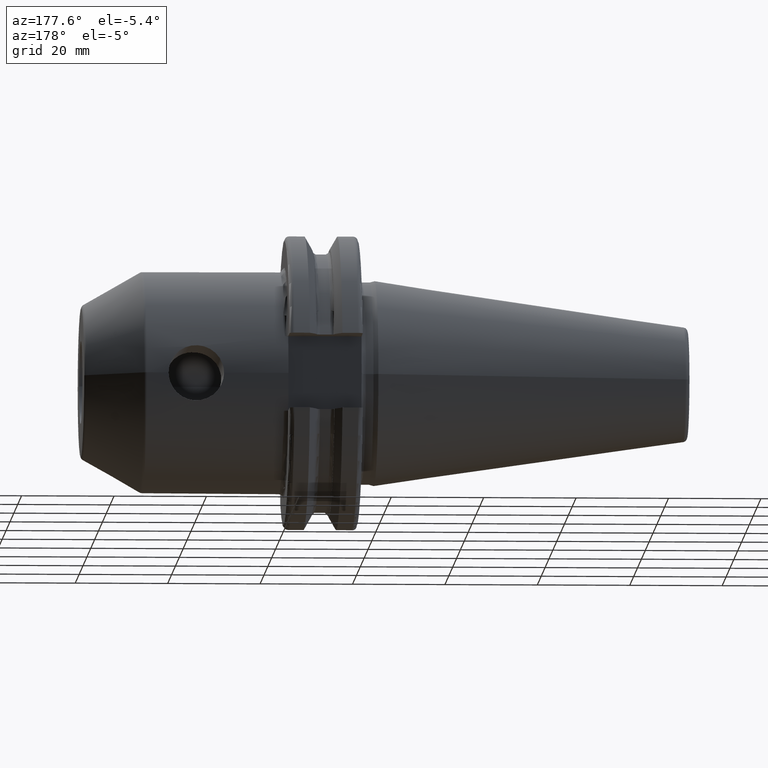
[diagram: clean part render]
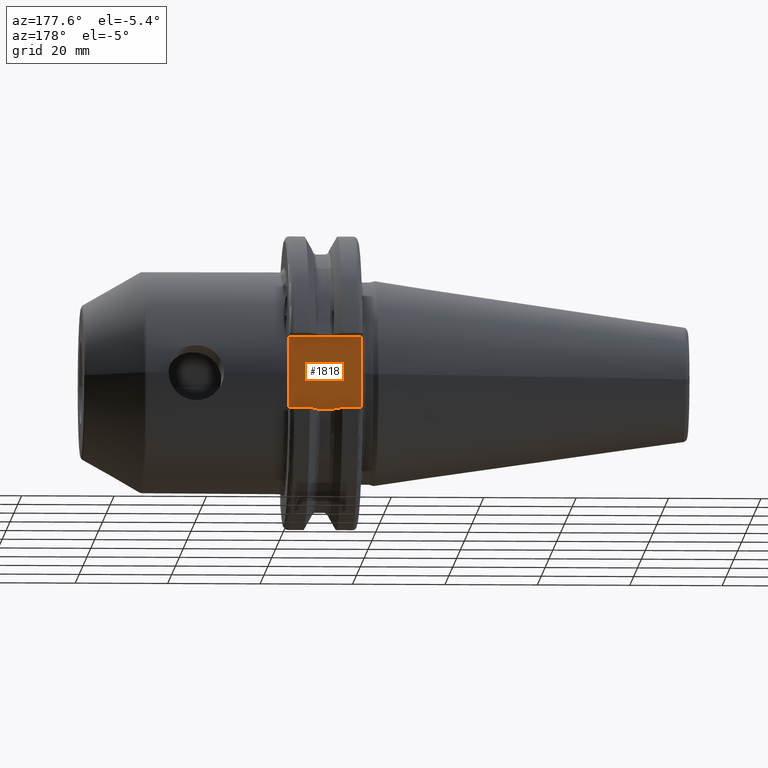
[diagram: same view with one face highlighted and labeled with its STEP entity id]
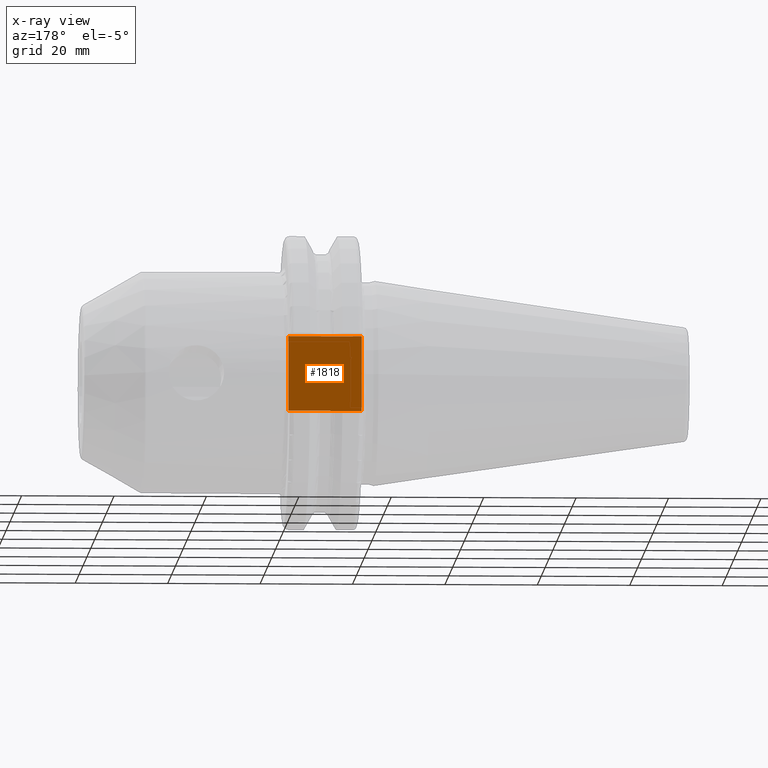
[diagram: x-ray of the same camera — body ghosted, the highlighted face saturated]
A machine part, auxiliary view. The second image highlights one B-rep face of the part: STEP entity #1818.
The next image is the same camera in x-ray: the body ghosted, the highlighted face saturated — about 0% of this face is hidden behind the body in this view.
In plain terms, the highlighted planar face has unit normal (0, -1, 0).
Its self-contained STEP definition (entity closure, byte-faithful):
#96=CARTESIAN_POINT('',(3.145714015969E0,2.255E1,0.E0));
#97=CARTESIAN_POINT('',(3.145714015969E0,2.255E1,-1.830251188857E-1));
#98=CARTESIAN_POINT('',(3.147263299438E0,2.255E1,-5.490774984715E-1));
#99=CARTESIAN_POINT('',(3.153915624300E0,2.255E1,-1.098219783342E0));
#100=CARTESIAN_POINT('',(3.163955531798E0,2.255E1,-1.647254187265E0));
#101=CARTESIAN_POINT('',(3.175890292850E0,2.255E1,-2.196155647006E0));
#102=CARTESIAN_POINT('',(3.187756155044E0,2.255E1,-2.744876756971E0));
#103=CARTESIAN_POINT('',(3.197183898560E0,2.255E1,-3.293518646440E0));
#104=CARTESIAN_POINT('',(3.2E0,2.255E1,-3.659354563864E0));
#105=CARTESIAN_POINT('',(3.2E0,2.255E1,-3.842281223440E0));
#122=DIRECTION('',(0.E0,0.E0,-1.E0));
#123=VECTOR('',#122,1.62E1);
#124=CARTESIAN_POINT('',(1.905E1,2.255E1,8.1E0));
#125=LINE('',#124,#123);
#126=DIRECTION('',(-1.E0,0.E0,0.E0));
#127=VECTOR('',#126,1.585E1);
#128=CARTESIAN_POINT('',(1.905E1,2.255E1,8.1E0));
#129=LINE('',#128,#127);
#238=DIRECTION('',(-1.E0,0.E0,0.E0));
#239=VECTOR('',#238,1.585E1);
#240=CARTESIAN_POINT('',(1.905E1,2.255E1,-8.1E0));
#241=LINE('',#240,#239);
#572=DIRECTION('',(0.E0,0.E0,-1.E0));
#573=VECTOR('',#572,4.257718776560E0);
#574=CARTESIAN_POINT('',(3.2E0,2.255E1,-3.842281223440E0));
#575=LINE('',#574,#573);
#576=DIRECTION('',(0.E0,0.E0,-1.E0));
#577=VECTOR('',#576,4.257718776560E0);
#578=CARTESIAN_POINT('',(3.2E0,2.255E1,8.1E0));
#579=LINE('',#578,#577);
#994=CARTESIAN_POINT('',(3.2E0,2.255E1,3.842281223440E0));
#995=CARTESIAN_POINT('',(3.2E0,2.255E1,3.659346360345E0));
#996=CARTESIAN_POINT('',(3.197183660273E0,2.255E1,3.293495674472E0));
#997=CARTESIAN_POINT('',(3.187755287998E0,2.255E1,2.744832710969E0));
#998=CARTESIAN_POINT('',(3.175889115457E0,2.255E1,2.196103113875E0));
#999=CARTESIAN_POINT('',(3.163954665645E0,2.255E1,1.647211248391E0));
#1000=CARTESIAN_POINT('',(3.153915287595E0,2.255E1,1.098195325368E0));
#1001=CARTESIAN_POINT('',(3.147263292433E0,2.255E1,5.490722257557E-1));
#1002=CARTESIAN_POINT('',(3.145714015969E0,2.255E1,1.830242653455E-1));
#1003=CARTESIAN_POINT('',(3.145714015969E0,2.255E1,0.E0));
#1532=CARTESIAN_POINT('',(3.2E0,2.255E1,8.1E0));
#1534=VERTEX_POINT('',#1532);
#1535=CARTESIAN_POINT('',(3.2E0,2.255E1,3.842281223440E0));
#1536=VERTEX_POINT('',#1535);
#1537=CARTESIAN_POINT('',(3.2E0,2.255E1,-3.842281223440E0));
#1538=CARTESIAN_POINT('',(3.2E0,2.255E1,-8.1E0));
#1539=VERTEX_POINT('',#1537);
#1540=VERTEX_POINT('',#1538);
#1559=VERTEX_POINT('',#1003);
#1641=CARTESIAN_POINT('',(1.905E1,2.255E1,8.1E0));
#1642=CARTESIAN_POINT('',(1.905E1,2.255E1,-8.1E0));
#1643=VERTEX_POINT('',#1641);
#1644=VERTEX_POINT('',#1642);
#1798=CARTESIAN_POINT('',(1.905E1,2.255E1,8.1E0));
#1799=DIRECTION('',(0.E0,-1.E0,0.E0));
#1800=DIRECTION('',(0.E0,0.E0,-1.E0));
#1801=AXIS2_PLACEMENT_3D('',#1798,#1799,#1800);
#1802=PLANE('',#1801);
#1804=ORIENTED_EDGE('',*,*,#1803,.F.);
#1806=ORIENTED_EDGE('',*,*,#1805,.T.);
#1808=ORIENTED_EDGE('',*,*,#1807,.T.);
#1810=ORIENTED_EDGE('',*,*,#1809,.T.);
#1811=ORIENTED_EDGE('',*,*,#1786,.T.);
#1813=ORIENTED_EDGE('',*,*,#1812,.T.);
#1815=ORIENTED_EDGE('',*,*,#1814,.F.);
#1816=EDGE_LOOP('',(#1804,#1806,#1808,#1810,#1811,#1813,#1815));
#1817=FACE_OUTER_BOUND('',#1816,.F.);
#1818=ADVANCED_FACE('',(#1817),#1802,.F.);
#106=B_SPLINE_CURVE_WITH_KNOTS('',3,(#96,#97,#98,#99,#100,#101,#102,#103,#104,
#105),.UNSPECIFIED.,.F.,.F.,(4,1,1,1,1,1,1,4),(0.E0,1.428571428571E-1,
2.857142857143E-1,4.285714285714E-1,5.714285714286E-1,7.142857142857E-1,
8.571428571429E-1,1.E0),.UNSPECIFIED.);
#1004=B_SPLINE_CURVE_WITH_KNOTS('',3,(#994,#995,#996,#997,#998,#999,#1000,#1001,
#1002,#1003),.UNSPECIFIED.,.F.,.F.,(4,1,1,1,1,1,1,4),(0.E0,1.428571428571E-1,
2.857142857143E-1,4.285714285714E-1,5.714285714286E-1,7.142857142857E-1,
8.571428571429E-1,1.E0),.UNSPECIFIED.);
#1786=EDGE_CURVE('',#1559,#1539,#106,.T.);
#1803=EDGE_CURVE('',#1643,#1644,#125,.T.);
#1805=EDGE_CURVE('',#1643,#1534,#129,.T.);
#1807=EDGE_CURVE('',#1534,#1536,#579,.T.);
#1809=EDGE_CURVE('',#1536,#1559,#1004,.T.);
#1812=EDGE_CURVE('',#1539,#1540,#575,.T.);
#1814=EDGE_CURVE('',#1644,#1540,#241,.T.);